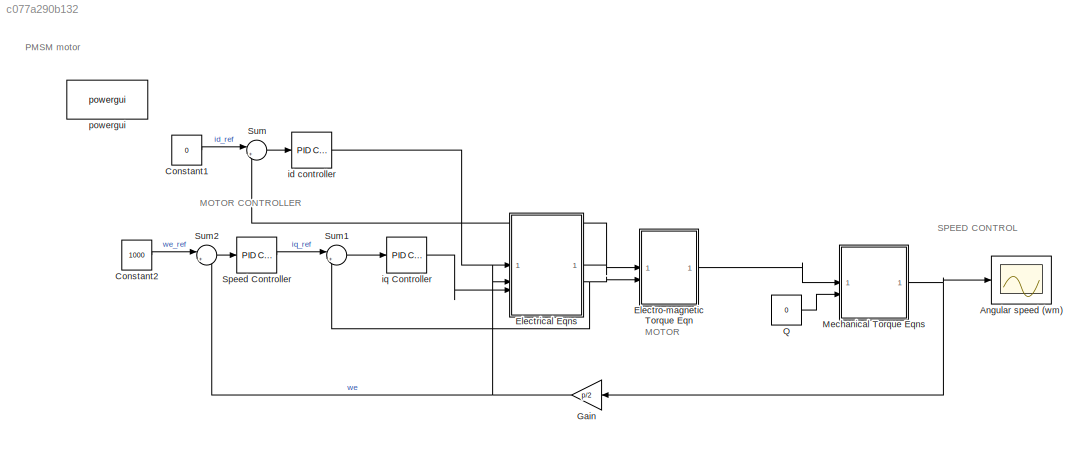
MODEL slx_c077a290b132
KIND model
CONFIG AbsTol = auto
CONFIG EnableMultiTasking = off
CONFIG FixedStep = auto
CONFIG MaxStep = auto
CONFIG MinStep = auto
CONFIG RelTol = 1e-3
CONFIG SampleTimeConstraint = Unconstrained
CONFIG SolverName = VariableStepAuto
CONFIG StartTime = 0.0
CONFIG StopTime = 10
BLOCK [Scope] Angular speed (wm)
  Floating = off
  NumInputPorts = 1
  ScopeSpecificationString = Simulink.scopes.TimeScopeBlockCfg('CurrentConfiguration', extmgr.ConfigurationSet(extmgr.Configuration('Core','General UI',true,'DisplayFullSourceName',true),extmgr.Configuration('Core','Source UI',true),extmgr.Configuration('Sources','WiredSimulink',true),extmgr.Configuration('Visuals','Time Domain',true,'SerializedDisplays',{struct('MinYLimReal','-167.97071','MaxYLimReal','1511.73636','YLabelRea...<+1493ch>
BLOCK [Constant] Constant1
  Value = 0
BLOCK [Constant] Constant2
  Value = 1000
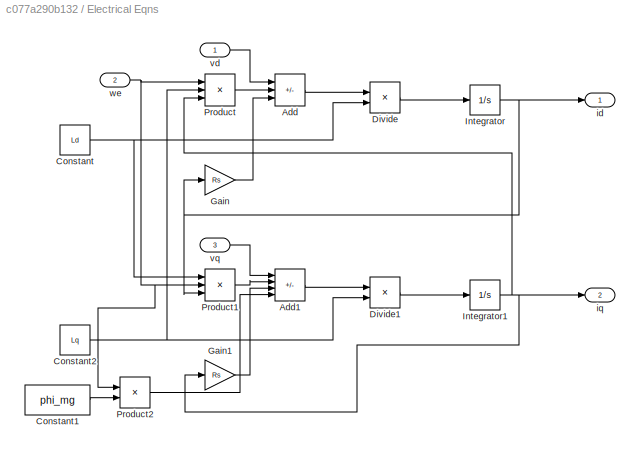
BLOCK [SubSystem] Electrical Eqns
BLOCK [Sum] Electrical Eqns/Add
  IconShape = rectangular
  Inputs = ++-
BLOCK [Sum] Electrical Eqns/Add1
  IconShape = rectangular
  Inputs = +---
BLOCK [Constant] Electrical Eqns/Constant
  Value = Ld
BLOCK [Constant] Electrical Eqns/Constant1
  Value = phi_mg
BLOCK [Constant] Electrical Eqns/Constant2
  Value = Lq
BLOCK [Product] Electrical Eqns/Divide
  Inputs = */
BLOCK [Product] Electrical Eqns/Divide1
  Inputs = */
BLOCK [Gain] Electrical Eqns/Gain
  Gain = Rs
BLOCK [Gain] Electrical Eqns/Gain1
  Gain = Rs
BLOCK [Integrator] Electrical Eqns/Integrator
BLOCK [Integrator] Electrical Eqns/Integrator1
BLOCK [Product] Electrical Eqns/Product
  Inputs = 3
BLOCK [Product] Electrical Eqns/Product1
  Inputs = 3
BLOCK [Product] Electrical Eqns/Product2
BLOCK [Outport] Electrical Eqns/id
BLOCK [Outport] Electrical Eqns/iq
  Port = 2
BLOCK [Inport] Electrical Eqns/vd
BLOCK [Inport] Electrical Eqns/vq
  Port = 3
BLOCK [Inport] Electrical Eqns/we
  Port = 2
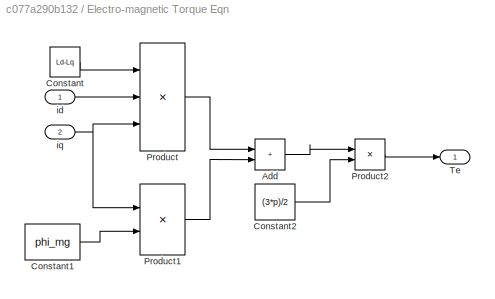
BLOCK [SubSystem] Electro-magnetic Torque Eqn
BLOCK [Sum] Electro-magnetic Torque Eqn/Add
  IconShape = rectangular
BLOCK [Constant] Electro-magnetic Torque Eqn/Constant
  Value = Ld-Lq
BLOCK [Constant] Electro-magnetic Torque Eqn/Constant1
  Value = phi_mg
BLOCK [Constant] Electro-magnetic Torque Eqn/Constant2
  Value = (3*p)/2
BLOCK [Product] Electro-magnetic Torque Eqn/Product
  Inputs = 3
BLOCK [Product] Electro-magnetic Torque Eqn/Product1
BLOCK [Product] Electro-magnetic Torque Eqn/Product2
BLOCK [Outport] Electro-magnetic Torque Eqn/Te
BLOCK [Inport] Electro-magnetic Torque Eqn/id
BLOCK [Inport] Electro-magnetic Torque Eqn/iq
  Port = 2
BLOCK [Gain] Gain
  Gain = p/2
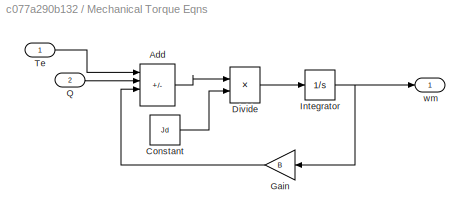
BLOCK [SubSystem] Mechanical Torque Eqns
BLOCK [Sum] Mechanical Torque Eqns/Add
  IconShape = rectangular
  Inputs = +---
BLOCK [Constant] Mechanical Torque Eqns/Constant
  Value = Jd
BLOCK [Product] Mechanical Torque Eqns/Divide
  Inputs = */
BLOCK [Gain] Mechanical Torque Eqns/Gain
  Gain = B
  NameLocation = top
BLOCK [Integrator] Mechanical Torque Eqns/Integrator
BLOCK [Inport] Mechanical Torque Eqns/Q
  Port = 2
BLOCK [Inport] Mechanical Torque Eqns/Te
BLOCK [Outport] Mechanical Torque Eqns/wm
BLOCK [Constant] Q
  Value = 0
BLOCK [Reference] Speed Controller  REF=slpidlib/PID Controller
  LibrarySourceBlock = simulink/Continuous/PID Controller
  SourceBlock = slpidlib/PID Controller
  SourceType = PID 1dof
BLOCK [Sum] Sum
  Inputs = |+-
BLOCK [Sum] Sum1
  Inputs = |+-
BLOCK [Sum] Sum2
  Inputs = |+-
BLOCK [Reference] id controller  REF=slpidlib/PID Controller
  LibrarySourceBlock = simulink/Continuous/PID Controller
  SourceBlock = slpidlib/PID Controller
  SourceType = PID 1dof
BLOCK [Reference] iq Controller  REF=slpidlib/PID Controller
  LibrarySourceBlock = simulink/Continuous/PID Controller
  SourceBlock = slpidlib/PID Controller
  SourceType = PID 1dof
BLOCK [Reference] powergui  REF=spspowerguiLib/powergui
  LibrarySourceBlock = sps_lib/powergui
  Priority = 1
  SourceBlock = spspowerguiLib/powergui
  SourceType = PSB option menu block
ANNOTATION (root): MOTOR CONTROLLER
ANNOTATION (root): MOTOR
ANNOTATION (root): SPEED CONTROL
ANNOTATION (root): PMSM motor
LINE Constant1:1 -> Sum:1
LINE Constant2:1 -> Sum2:1
LINE Electrical Eqns/Add1:1 -> Electrical Eqns/Divide1:1
LINE Electrical Eqns/Add:1 -> Electrical Eqns/Divide:1
LINE Electrical Eqns/Constant1:1 -> Electrical Eqns/Product2:2
NET Electrical Eqns/Constant2:1 -> Electrical Eqns/Divide1:2, Electrical Eqns/Product:2
NET Electrical Eqns/Constant:1 -> Electrical Eqns/Divide:2, Electrical Eqns/Product1:1
LINE Electrical Eqns/Divide1:1 -> Electrical Eqns/Integrator1:1
LINE Electrical Eqns/Divide:1 -> Electrical Eqns/Integrator:1
LINE Electrical Eqns/Gain1:1 -> Electrical Eqns/Add1:3
LINE Electrical Eqns/Gain:1 -> Electrical Eqns/Add:3
NET Electrical Eqns/Integrator1:1 -> Electrical Eqns/Gain1:1, Electrical Eqns/Product:3, Electrical Eqns/iq:1
NET Electrical Eqns/Integrator:1 -> Electrical Eqns/Gain:1, Electrical Eqns/Product1:3, Electrical Eqns/id:1
LINE Electrical Eqns/Product1:1 -> Electrical Eqns/Add1:2
LINE Electrical Eqns/Product2:1 -> Electrical Eqns/Add1:4
LINE Electrical Eqns/Product:1 -> Electrical Eqns/Add:2
LINE Electrical Eqns/vd:1 -> Electrical Eqns/Add:1
LINE Electrical Eqns/vq:1 -> Electrical Eqns/Add1:1
NET Electrical Eqns/we:1 -> Electrical Eqns/Product1:2, Electrical Eqns/Product2:1, Electrical Eqns/Product:1
NET Electrical Eqns:1 -> Electro-magnetic Torque Eqn:1, Sum:2
NET Electrical Eqns:2 -> Electro-magnetic Torque Eqn:2, Sum1:2
LINE Electro-magnetic Torque Eqn/Add:1 -> Electro-magnetic Torque Eqn/Product2:1
LINE Electro-magnetic Torque Eqn/Constant1:1 -> Electro-magnetic Torque Eqn/Product1:2
LINE Electro-magnetic Torque Eqn/Constant2:1 -> Electro-magnetic Torque Eqn/Product2:2
LINE Electro-magnetic Torque Eqn/Constant:1 -> Electro-magnetic Torque Eqn/Product:1
LINE Electro-magnetic Torque Eqn/Product1:1 -> Electro-magnetic Torque Eqn/Add:2
LINE Electro-magnetic Torque Eqn/Product2:1 -> Electro-magnetic Torque Eqn/Te:1
LINE Electro-magnetic Torque Eqn/Product:1 -> Electro-magnetic Torque Eqn/Add:1
LINE Electro-magnetic Torque Eqn/id:1 -> Electro-magnetic Torque Eqn/Product:2
NET Electro-magnetic Torque Eqn/iq:1 -> Electro-magnetic Torque Eqn/Product1:1, Electro-magnetic Torque Eqn/Product:3
LINE Electro-magnetic Torque Eqn:1 -> Mechanical Torque Eqns:1
NET Gain:1 -> Electrical Eqns:2, Sum2:2
LINE Mechanical Torque Eqns/Add:1 -> Mechanical Torque Eqns/Divide:1
LINE Mechanical Torque Eqns/Constant:1 -> Mechanical Torque Eqns/Divide:2
LINE Mechanical Torque Eqns/Divide:1 -> Mechanical Torque Eqns/Integrator:1
LINE Mechanical Torque Eqns/Gain:1 -> Mechanical Torque Eqns/Add:3
NET Mechanical Torque Eqns/Integrator:1 -> Mechanical Torque Eqns/Gain:1, Mechanical Torque Eqns/wm:1
LINE Mechanical Torque Eqns/Q:1 -> Mechanical Torque Eqns/Add:2
LINE Mechanical Torque Eqns/Te:1 -> Mechanical Torque Eqns/Add:1
NET Mechanical Torque Eqns:1 -> Angular speed (wm):1, Gain:1
LINE Q:1 -> Mechanical Torque Eqns:2
LINE Speed Controller:1 -> Sum1:1
LINE Sum1:1 -> iq Controller:1
LINE Sum2:1 -> Speed Controller:1
LINE Sum:1 -> id controller:1
LINE id controller:1 -> Electrical Eqns:1
LINE iq Controller:1 -> Electrical Eqns:3
note: NET lines group one-source signal fan-out (src -> all destinations, sorted); 1:1 wires keep LINE
